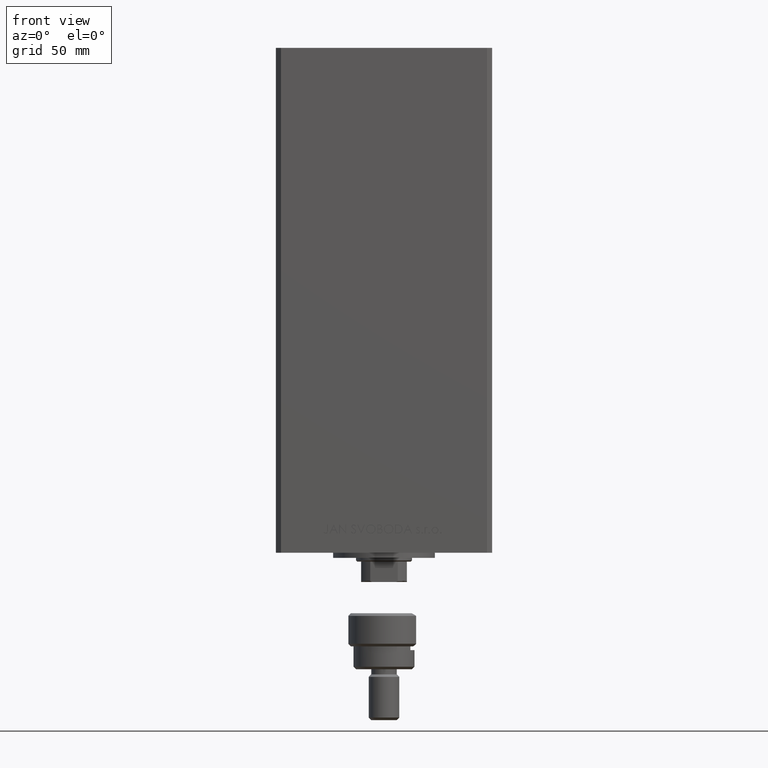
[diagram: clean part render]
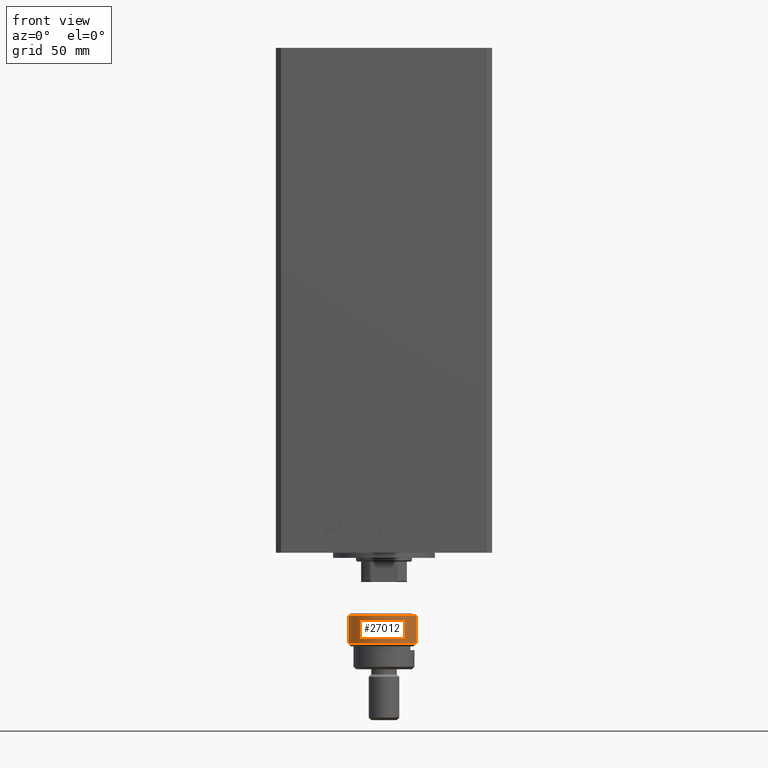
[diagram: same view with one face highlighted and labeled with its STEP entity id]
A machine part, front view. The second image highlights one B-rep face of the part: STEP entity #27012.
In plain terms, the highlighted cylindrical surface (edge-blend (fillet) strip) has radius 14 mm, axis along (0, -0, 1).
Its self-contained STEP definition (entity closure, byte-faithful):
#1813 = VERTEX_POINT ( 'NONE', #9173 ) ;
#3164 = EDGE_CURVE ( 'NONE', #39321, #1813, #48717, .T. ) ;
#3197 = CARTESIAN_POINT ( 'NONE',  ( -12.64911064067351809, -5.999999999999999112, 14.50000000000000000 ) ) ;
#5142 = VERTEX_POINT ( 'NONE', #45474 ) ;
#6212 = DIRECTION ( 'NONE',  ( -1.000000000000000000, 0.000000000000000000, 0.000000000000000000 ) ) ;
#6563 = CARTESIAN_POINT ( 'NONE',  ( 14.00000000000000000, 0.000000000000000000, 1.000000000000018208 ) ) ;
#7054 = DIRECTION ( 'NONE',  ( -0.000000000000000000, -0.000000000000000000, 1.000000000000000000 ) ) ;
#9173 = CARTESIAN_POINT ( 'NONE',  ( -12.64911064067351809, 6.000000000000000000, 1.000000000000021760 ) ) ;
#9377 = VERTEX_POINT ( 'NONE', #24152 ) ;
#9534 = CARTESIAN_POINT ( 'NONE',  ( 0.000000000000000000, 0.000000000000000000, 13.00000000000000000 ) ) ;
#9976 = VECTOR ( 'NONE', #44307, 1000.000000000000000 ) ;
#11007 = VECTOR ( 'NONE', #50126, 1000.000000000000000 ) ;
#11011 = ORIENTED_EDGE ( 'NONE', *, *, #44243, .T. ) ;
#13206 = CARTESIAN_POINT ( 'NONE',  ( -12.64911064067351809, 6.000000000000000000, 14.50000000000000000 ) ) ;
#15205 = VERTEX_POINT ( 'NONE', #36560 ) ;
#15461 = CARTESIAN_POINT ( 'NONE',  ( 0.000000000000000000, 0.000000000000000000, 1.000000000000018208 ) ) ;
#16463 = ORIENTED_EDGE ( 'NONE', *, *, #3164, .T. ) ;
#16644 = EDGE_LOOP ( 'NONE', ( #31657, #27539, #11011, #21846, #16463 ) ) ;
#16715 = CARTESIAN_POINT ( 'NONE',  ( 0.000000000000000000, 0.000000000000000000, 12.00000000000002842 ) ) ;
#18101 = EDGE_CURVE ( 'NONE', #5142, #1813, #47886, .T. ) ;
#18935 = CIRCLE ( 'NONE', #45000, 14.00000000000000000 ) ;
#20479 = AXIS2_PLACEMENT_3D ( 'NONE', #22194, #26267, #45920 ) ;
#21846 = ORIENTED_EDGE ( 'NONE', *, *, #36320, .T. ) ;
#22194 = CARTESIAN_POINT ( 'NONE',  ( 0.000000000000000000, 0.000000000000000000, 1.000000000000018208 ) ) ;
#24152 = CARTESIAN_POINT ( 'NONE',  ( -12.64911064067351809, -5.999999999999999112, 1.000000000000021760 ) ) ;
#25080 = DIRECTION ( 'NONE',  ( -0.000000000000000000, -0.000000000000000000, -1.000000000000000000 ) ) ;
#26267 = DIRECTION ( 'NONE',  ( -0.000000000000000000, -0.000000000000000000, 1.000000000000000000 ) ) ;
#27012 = ADVANCED_FACE ( 'NONE', ( #40894 ), #44470, .T. ) ;
#27539 = ORIENTED_EDGE ( 'NONE', *, *, #38138, .T. ) ;
#31657 = ORIENTED_EDGE ( 'NONE', *, *, #18101, .F. ) ;
#36320 = EDGE_CURVE ( 'NONE', #9377, #39321, #45730, .T. ) ;
#36560 = CARTESIAN_POINT ( 'NONE',  ( -12.64911064067351809, -5.999999999999999112, 12.00000000000002842 ) ) ;
#37866 = LINE ( 'NONE', #3197, #11007 ) ;
#38138 = EDGE_CURVE ( 'NONE', #5142, #15205, #18935, .T. ) ;
#38156 = DIRECTION ( 'NONE',  ( 1.000000000000000000, 0.000000000000000000, 0.000000000000000000 ) ) ;
#39321 = VERTEX_POINT ( 'NONE', #6563 ) ;
#40258 = AXIS2_PLACEMENT_3D ( 'NONE', #9534, #25080, #6212 ) ;
#40540 = AXIS2_PLACEMENT_3D ( 'NONE', #15461, #7054, #38156 ) ;
#40894 = FACE_OUTER_BOUND ( 'NONE', #16644, .T. ) ;
#44243 = EDGE_CURVE ( 'NONE', #15205, #9377, #37866, .T. ) ;
#44307 = DIRECTION ( 'NONE',  ( -0.000000000000000000, -0.000000000000000000, -1.000000000000000000 ) ) ;
#44470 = CYLINDRICAL_SURFACE ( 'NONE', #40258, 14.00000000000000000 ) ;
#44496 = DIRECTION ( 'NONE',  ( 1.000000000000000000, 0.000000000000000000, 0.000000000000000000 ) ) ;
#45000 = AXIS2_PLACEMENT_3D ( 'NONE', #16715, #47809, #44496 ) ;
#45474 = CARTESIAN_POINT ( 'NONE',  ( -12.64911064067351809, 6.000000000000000000, 12.00000000000002842 ) ) ;
#45730 = CIRCLE ( 'NONE', #20479, 14.00000000000000000 ) ;
#45920 = DIRECTION ( 'NONE',  ( 1.000000000000000000, 0.000000000000000000, 0.000000000000000000 ) ) ;
#47809 = DIRECTION ( 'NONE',  ( 0.000000000000000000, 0.000000000000000000, -1.000000000000000000 ) ) ;
#47886 = LINE ( 'NONE', #13206, #9976 ) ;
#48717 = CIRCLE ( 'NONE', #40540, 14.00000000000000000 ) ;
#50126 = DIRECTION ( 'NONE',  ( -0.000000000000000000, -0.000000000000000000, -1.000000000000000000 ) ) ;